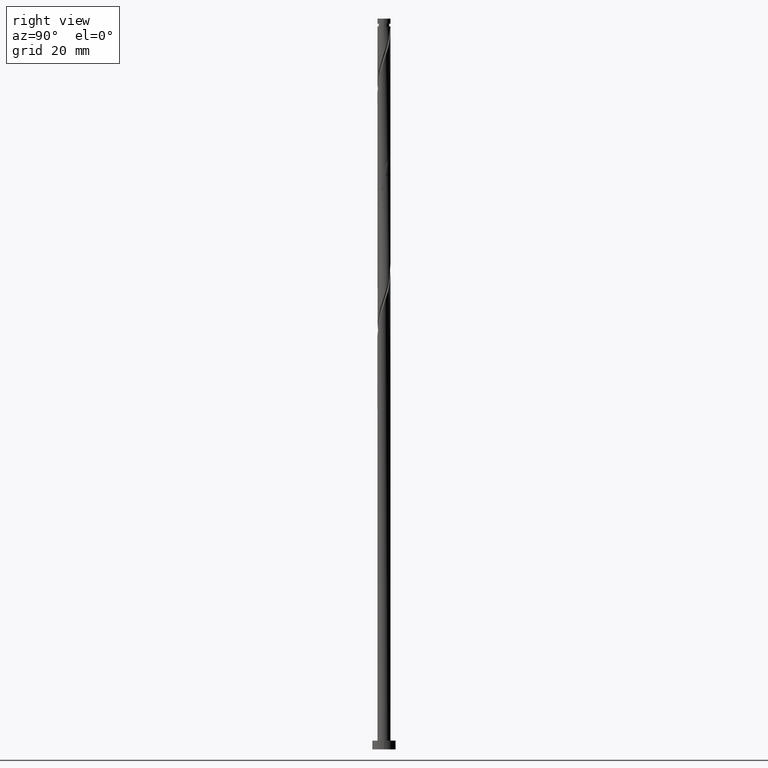
[diagram: clean part render]
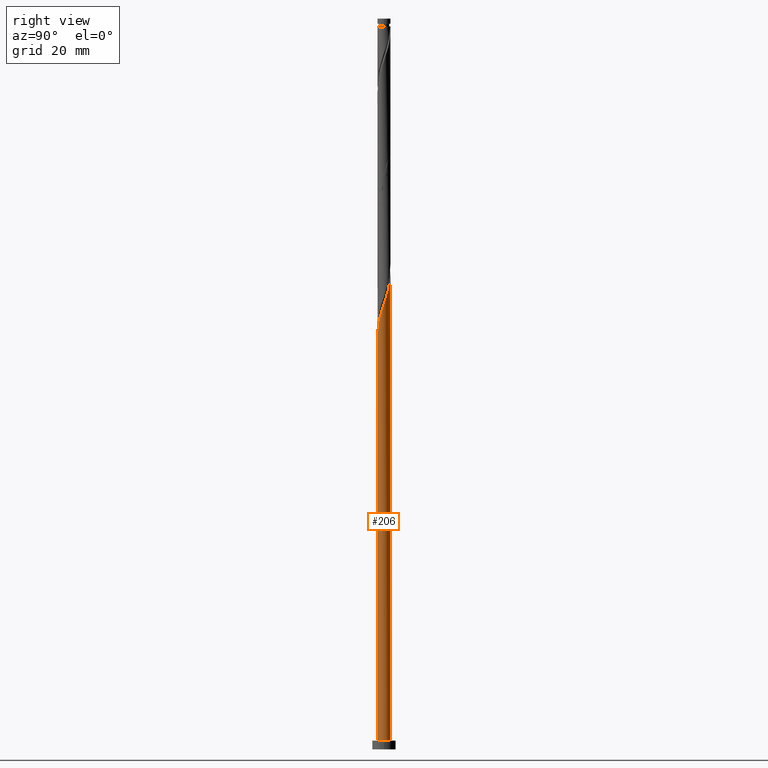
[diagram: same view with one face highlighted and labeled with its STEP entity id]
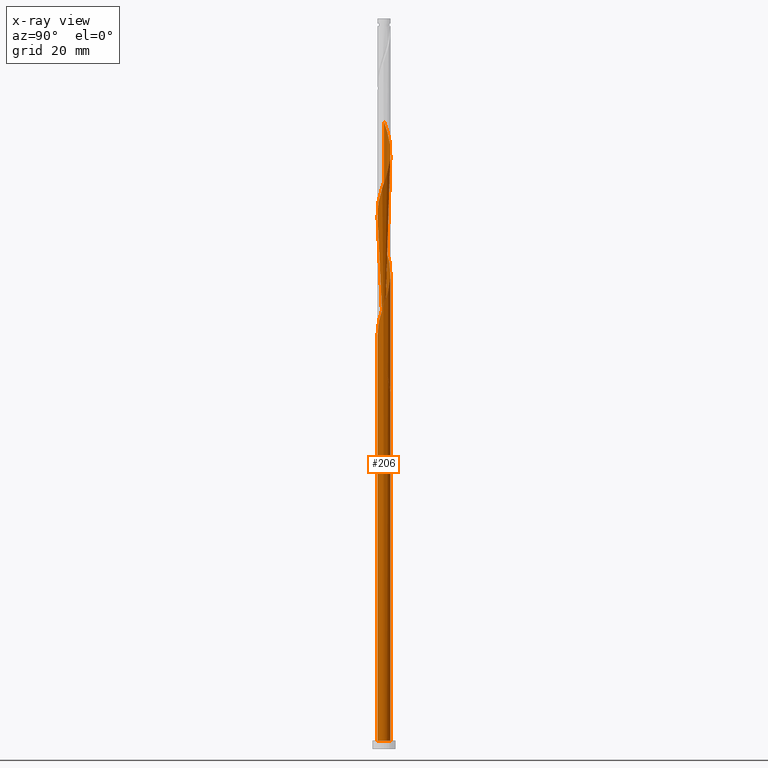
[diagram: x-ray of the same camera — body ghosted, the highlighted face saturated]
A machine part, right view. The second image highlights one B-rep face of the part: STEP entity #206.
The next image is the same camera in x-ray: the body ghosted, the highlighted face saturated — about 0% of this face is hidden behind the body in this view.
In plain terms, the highlighted cylindrical surface (bore or boss wall) has radius 2.25 mm, axis along (-0, -0, -1).
Its self-contained STEP definition (entity closure, byte-faithful):
#3 = ORIENTED_EDGE ( 'NONE', *, *, #802, .T. ) ;
#9 = CARTESIAN_POINT ( 'NONE',  ( -2.250000000000000000, 0.000000000000000000, 250.0000000000000000 ) ) ;
#15 = AXIS2_PLACEMENT_3D ( 'NONE', #147, #1450, #280 ) ;
#18 = EDGE_CURVE ( 'NONE', #1128, #1163, #1183, .T. ) ;
#19 = LINE ( 'NONE', #1718, #1282 ) ;
#32 = CARTESIAN_POINT ( 'NONE',  ( -1.363498215478761599, -1.810527702787224635, 137.5899613470693907 ) ) ;
#33 = CARTESIAN_POINT ( 'NONE',  ( 0.4477443466979811881, 2.204999999999998739, 122.3656023727104127 ) ) ;
#35 = CARTESIAN_POINT ( 'NONE',  ( -1.421172524092397582, 1.744353363503178933, 125.5707305778386313 ) ) ;
#41 = CARTESIAN_POINT ( 'NONE',  ( 2.220483148606112955, -0.3632555391956107105, 151.2117562188641955 ) ) ;
#45 = DIRECTION ( 'NONE',  ( 1.000000000000000000, 0.000000000000000000, 0.000000000000000000 ) ) ;
#49 = CARTESIAN_POINT ( 'NONE',  ( 2.176375940620510541, -0.6328710068109749676, 192.0771408342488655 ) ) ;
#56 = CARTESIAN_POINT ( 'NONE',  ( -2.250000000000002665, -2.071397486860161381E-15, 131.4543471634852381 ) ) ;
#61 = CARTESIAN_POINT ( 'NONE',  ( -2.250000000000002220, 2.991187706657272286E-17, 214.7876804968185809 ) ) ;
#64 = CARTESIAN_POINT ( 'NONE',  ( -1.902938481636570200, -1.200552012661973755, 135.1861151932232019 ) ) ;
#68 = CARTESIAN_POINT ( 'NONE',  ( 0.3659235337506719921, 2.236791879818319284, 203.2950895521976236 ) ) ;
#104 = ORIENTED_EDGE ( 'NONE', *, *, #1544, .T. ) ;
#108 = CARTESIAN_POINT ( 'NONE',  ( -2.250000000000000000, 0.08948954325773064711, 133.8460199996359563 ) ) ;
#112 = CARTESIAN_POINT ( 'NONE',  ( -1.127044005484668876, -1.947375621111932187, 180.0579100650180919 ) ) ;
#116 = CARTESIAN_POINT ( 'NONE',  ( -1.560331645388216781, 1.621069139919732116, 128.7758587829668215 ) ) ;
#129 = CARTESIAN_POINT ( 'NONE',  ( -1.797326917357241483, 1.353556778322626997, 168.8399613470694192 ) ) ;
#140 = CARTESIAN_POINT ( 'NONE',  ( -1.961678465785108516, 1.135321779518358332, 169.6412433983514632 ) ) ;
#147 = CARTESIAN_POINT ( 'NONE',  ( 0.000000000000000000, 0.000000000000000000, 122.3656023727104412 ) ) ;
#167 = CARTESIAN_POINT ( 'NONE',  ( 1.961678465785108072, -1.135321779518358998, 190.4745767316848060 ) ) ;
#173 = CARTESIAN_POINT ( 'NONE',  ( 2.264590356591716258, -0.09364007158024623134, 193.6797049368130104 ) ) ;
#177 = CARTESIAN_POINT ( 'NONE',  ( -0.8905897954905761527, -2.084223539436641737, 139.1925254496335072 ) ) ;
#181 = CARTESIAN_POINT ( 'NONE',  ( 1.421172524092397582, -1.744353363503178933, 188.0707305778386171 ) ) ;
#190 = CARTESIAN_POINT ( 'NONE',  ( 1.797326917357241038, -1.353556778322626997, 189.6732946804027335 ) ) ;
#199 = CARTESIAN_POINT ( 'NONE',  ( -1.209369679255421159, 1.916914949879464425, 208.1027818598899444 ) ) ;
#205 = CARTESIAN_POINT ( 'NONE',  ( -1.757165075297676626, -1.431610577052243816, 135.9873972445053028 ) ) ;
#206 = ADVANCED_FACE ( 'NONE', ( #1244 ), #930, .T. ) ;
#213 = ORIENTED_EDGE ( 'NONE', *, *, #1488, .T. ) ;
#219 = CARTESIAN_POINT ( 'NONE',  ( -1.363498215478759157, 1.810527702787223081, 127.9745767316848202 ) ) ;
#228 = CARTESIAN_POINT ( 'NONE',  ( -1.127044005484666434, 1.947375621111930855, 127.1732946804027335 ) ) ;
#232 = CARTESIAN_POINT ( 'NONE',  ( 1.757165075297677737, 1.431610577052242705, 156.8207305778386740 ) ) ;
#240 = VERTEX_POINT ( 'NONE', #1349 ) ;
#259 = CARTESIAN_POINT ( 'NONE',  ( -0.6282566646206237948, -2.160507709627479844, 181.6604741675821799 ) ) ;
#264 = CARTESIAN_POINT ( 'NONE',  ( 0.1800088736928962818, 2.259366006552623318, 123.1668844239924852 ) ) ;
#269 = CARTESIAN_POINT ( 'NONE',  ( -0.7154798197030658446, 2.150633993447378156, 164.8335510906591423 ) ) ;
#280 = DIRECTION ( 'NONE',  ( 0.000000000000000000, 1.000000000000000000, -1.850371707708594129E-14 ) ) ;
#304 = CARTESIAN_POINT ( 'NONE',  ( -0.1800088736928949495, 2.259366006552626871, 204.8976536547617684 ) ) ;
#313 = CARTESIAN_POINT ( 'NONE',  ( 0.9624247494792426139, -2.033774471663421402, 186.4681664752744723 ) ) ;
#315 = VECTOR ( 'NONE', #546, 1000.000000000000000 ) ;
#319 = CARTESIAN_POINT ( 'NONE',  ( -0.6282566646206237948, -2.160507709627479844, 139.9938075009155796 ) ) ;
#321 = CARTESIAN_POINT ( 'NONE',  ( -0.9624247494792432800, 2.033774471663420957, 207.3014998086078151 ) ) ;
#322 = CARTESIAN_POINT ( 'NONE',  ( -2.250000000000003109, 0.1828269867083482936, 214.2479797594702973 ) ) ;
#329 = CARTESIAN_POINT ( 'NONE',  ( 2.048711887975464219, 0.9694934482717034729, 196.8848331419411579 ) ) ;
#336 = CARTESIAN_POINT ( 'NONE',  ( 1.632975368929374449, -1.571791777126895218, 147.2053459624540039 ) ) ;
#341 = CARTESIAN_POINT ( 'NONE',  ( 1.421172524092397582, -1.744353363503178933, 146.4040639111719315 ) ) ;
#343 = CARTESIAN_POINT ( 'NONE',  ( 0.4477443466979806885, -2.205000000000001847, 184.8656023727103843 ) ) ;
#361 = CARTESIAN_POINT ( 'NONE',  ( -1.902938481636567536, 1.200552012661972867, 130.3784228855309379 ) ) ;
#382 = CARTESIAN_POINT ( 'NONE',  ( -1.902938481636570200, -1.200552012661973755, 176.8527818598898591 ) ) ;
#393 = CARTESIAN_POINT ( 'NONE',  ( -0.9624247494792432800, 2.033774471663420957, 165.6348331419411579 ) ) ;
#395 = EDGE_LOOP ( 'NONE', ( #1327, #1399, #213, #3, #1664, #1453, #576, #104, #1222 ) ) ;
#399 = CARTESIAN_POINT ( 'NONE',  ( -0.09295733002888698082, 2.248078943185470191, 123.9681664752745149 ) ) ;
#430 = AXIS2_PLACEMENT_3D ( 'NONE', #1111, #722, #1234 ) ;
#439 = VERTEX_POINT ( 'NONE', #602 ) ;
#442 = CARTESIAN_POINT ( 'NONE',  ( 0.9624247494792426139, -2.033774471663421402, 144.8014998086078720 ) ) ;
#445 = CARTESIAN_POINT ( 'NONE',  ( 2.134953450232148331, 0.7102631662573074545, 196.0835510906590571 ) ) ;
#449 = CARTESIAN_POINT ( 'NONE',  ( -1.560331645388218780, -1.621069139919733226, 136.7886792957873183 ) ) ;
#461 = CARTESIAN_POINT ( 'NONE',  ( 1.757165075297677737, 1.431610577052242705, 198.4873972445053028 ) ) ;
#472 = CARTESIAN_POINT ( 'NONE',  ( -2.221195012488832887, -0.4510328842429138230, 132.7822690393770984 ) ) ;
#484 = CARTESIAN_POINT ( 'NONE',  ( -1.757165075297674628, 1.431610577052242483, 129.5771408342488655 ) ) ;
#509 = CARTESIAN_POINT ( 'NONE',  ( -2.250000000000000000, 2.864062229124354370E-15, 134.1101909152689302 ) ) ;
#519 = CARTESIAN_POINT ( 'NONE',  ( -2.242892684540271464, 0.1786964063313342399, 133.5835510906591139 ) ) ;
#525 = CARTESIAN_POINT ( 'NONE',  ( -2.134953450232147887, -0.7102631662573087867, 175.2502177573257995 ) ) ;
#532 = CARTESIAN_POINT ( 'NONE',  ( -0.3659235337506718255, -2.236791879818319284, 182.4617562188642808 ) ) ;
#540 = CARTESIAN_POINT ( 'NONE',  ( -1.209369679255421159, 1.916914949879464425, 166.4361151932232588 ) ) ;
#546 = DIRECTION ( 'NONE',  ( -0.000000000000000000, -0.000000000000000000, -1.000000000000000000 ) ) ;
#571 = CARTESIAN_POINT ( 'NONE',  ( -1.632975368929374449, 1.571791777126894996, 126.3720126291207038 ) ) ;
#573 = CARTESIAN_POINT ( 'NONE',  ( -2.176375940620510541, 0.6328710068109739684, 212.9104741675822368 ) ) ;
#576 = ORIENTED_EDGE ( 'NONE', *, *, #1471, .F. ) ;
#589 = CARTESIAN_POINT ( 'NONE',  ( -1.632975368929374449, 1.571791777126894996, 209.7053459624540324 ) ) ;
#602 = CARTESIAN_POINT ( 'NONE',  ( -2.250000000000002665, -2.071397486860161381E-15, 131.4543471634852381 ) ) ;
#605 = CARTESIAN_POINT ( 'NONE',  ( 2.264590356591716258, -0.09364007158024623134, 152.0130382701463816 ) ) ;
#612 = CARTESIAN_POINT ( 'NONE',  ( 0.09295733002888947882, 2.248078943185472411, 162.4297049368129535 ) ) ;
#620 = VERTEX_POINT ( 'NONE', #1118 ) ;
#631 = CARTESIAN_POINT ( 'NONE',  ( -0.4477443466979804110, 2.205000000000001847, 164.0322690393770415 ) ) ;
#635 = CARTESIAN_POINT ( 'NONE',  ( -2.221195012488829779, 0.4510328842429138785, 132.7822690393770984 ) ) ;
#644 = CARTESIAN_POINT ( 'NONE',  ( -0.8905897954905749314, 2.084223539436639072, 126.3720126291207038 ) ) ;
#669 = CARTESIAN_POINT ( 'NONE',  ( -2.221195012488832887, -0.4510328842429138230, 174.4489357060437271 ) ) ;
#682 = EDGE_CURVE ( 'NONE', #1163, #996, #924, .T. ) ;
#687 = CARTESIAN_POINT ( 'NONE',  ( 1.797326917357241038, -1.353556778322626997, 148.0066280137359911 ) ) ;
#689 =( BOUNDED_CURVE ( )  B_SPLINE_CURVE ( 2, ( #56, #1649, #1378, #472, #849, #1096, #64, #205, #449, #32, #1624, #177, #319, #829, #1497, #712, #1384, #983, #442, #975, #341, #336, #687, #1204, #695, #1647, #41, #605, #1518, #980, #1546, #1014, #856, #232, #1391, #1419, #1257, #1276, #1266, #1686, #612, #1667, #631, #269, #393, #540, #1313, #1302, #129, #140, #1056, #792, #918, #1702, #1553, #669, #525, #767, #382, #892, #882, #1430, #112, #1165, #259, #532, #1037, #1650, #343, #1008, #313, #1373, #181, #833, #190, #167, #969, #49, #1079, #173, #1215, #1502, #445, #329, #815, #461, #1089, #823, #1483, #842, #1361, #68, #1629, #304, #1490, #697, #321, #199, #707, #589, #1238, #1068, #1217, #573, #1070, #322, #61 ),
 .UNSPECIFIED., .F., .T. ) 
 B_SPLINE_CURVE_WITH_KNOTS ( ( 3, 2, 2, 2, 2, 2, 2, 2, 2, 2, 2, 2, 2, 2, 2, 2, 2, 2, 2, 2, 2, 2, 2, 2, 2, 2, 2, 2, 2, 2, 2, 2, 2, 2, 2, 2, 2, 2, 2, 2, 2, 2, 2, 2, 2, 2, 2, 2, 2, 2, 2, 2, 2, 3 ),
 ( 0.05452716259738319554, 0.05769230769230770939, 0.06730769230769229061, 0.07692307692307687184, 0.08653846153846156408, 0.09615384615384614531, 0.1057692307692307265, 0.1153846153846154188, 0.1250000000000000000, 0.1346153846153845812, 0.1442307692307692735, 0.1538461538461538547, 0.1634615384615384359, 0.1730769230769231282, 0.1826923076923077094, 0.1923076923076922906, 0.2019230769230768718, 0.2115384615384615641, 0.2211538461538461453, 0.2307692307692307265, 0.2403846153846154188, 0.2500000000000000000, 0.2596153846153845812, 0.2692307692307692735, 0.2788461538461538547, 0.2884615384615384359, 0.2980769230769231282, 0.3076923076923077094, 0.3173076923076922906, 0.3269230769230768718, 0.3365384615384615641, 0.3461538461538461453, 0.3557692307692307265, 0.3653846153846154188, 0.3750000000000000000, 0.3846153846153845812, 0.3942307692307692735, 0.4038461538461538547, 0.4134615384615384359, 0.4230769230769231282, 0.4326923076923077094, 0.4423076923076922906, 0.4519230769230768718, 0.4615384615384615641, 0.4711538461538461453, 0.4807692307692307265, 0.4903846153846154188, 0.5000000000000000000, 0.5096153846153845812, 0.5192307692307691624, 0.5288461538461538547, 0.5384615384615384359, 0.5480769230769231282, 0.5545271625973834384 ),
 .UNSPECIFIED. ) 
 CURVE ( )  GEOMETRIC_REPRESENTATION_ITEM ( )  RATIONAL_B_SPLINE_CURVE ( ( 0.9061636035683027224, 0.9069090390690913717, 0.9090909090909480295, 0.9024626128164512373, 0.9090909090909480295, 0.9024626128164512373, 0.9090909090909480295, 0.9024626128164512373, 0.9090909090909480295, 0.9024626128164512373, 0.9090909090909480295, 0.9024626128164512373, 0.9090909090909480295, 0.9024626128164512373, 0.9090909090909480295, 0.9024626128164512373, 0.9090909090909480295, 0.9024626128164512373, 0.9090909090909480295, 0.9024626128164512373, 0.9090909090909480295, 0.9024626128164512373, 0.9090909090909480295, 0.9024626128164512373, 0.9090909090909480295, 0.9024626128164512373, 0.9090909090909480295, 0.9024626128164512373, 0.9090909090909480295, 0.9024626128164512373, 0.9090909090909480295, 0.9024626128164512373, 0.9090909090909480295, 0.9024626128164512373, 0.9090909090909480295, 0.9024626128164512373, 0.9090909090909480295, 0.9024626128164512373, 0.9090909090909480295, 0.9024626128164512373, 0.9090909090909480295, 0.9024626128164512373, 0.9090909090909480295, 0.9024626128164512373, 0.9090909090909480295, 0.9024626128164512373, 0.9090909090909480295, 0.9024626128164512373, 0.9090909090909480295, 0.9024626128164512373, 0.9090909090909480295, 0.9024626128164512373, 0.9090909090909480295, 0.9024626128164512373, 0.9090909090909480295, 0.9024626128164512373, 0.9090909090909480295, 0.9024626128164512373, 0.9090909090909480295, 0.9024626128164512373, 0.9090909090909480295, 0.9024626128164512373, 0.9090909090909480295, 0.9024626128164512373, 0.9090909090909480295, 0.9024626128164512373, 0.9090909090909480295, 0.9024626128164512373, 0.9090909090909480295, 0.9024626128164512373, 0.9090909090909480295, 0.9024626128164512373, 0.9090909090909480295, 0.9024626128164512373, 0.9090909090909480295, 0.9024626128164512373, 0.9090909090909480295, 0.9024626128164512373, 0.9090909090909480295, 0.9024626128164512373, 0.9090909090909480295, 0.9024626128164512373, 0.9090909090909480295, 0.9024626128164512373, 0.9090909090909480295, 0.9024626128164512373, 0.9090909090909480295, 0.9024626128164512373, 0.9090909090909480295, 0.9024626128164512373, 0.9090909090909480295, 0.9024626128164512373, 0.9090909090909480295, 0.9024626128164512373, 0.9090909090909480295, 0.9024626128164512373, 0.9090909090909480295, 0.9024626128164512373, 0.9090909090909480295, 0.9024626128164512373, 0.9090909090909480295, 0.9024626128164512373, 0.9090909090909480295, 0.9024626128164512373, 0.9090909090909480295, 0.9046444828383077841, 0.9061636035683027224 ) ) 
 REPRESENTATION_ITEM ( '' )  );
#695 = CARTESIAN_POINT ( 'NONE',  ( 2.069027203202809417, -0.8840963931646660390, 149.6091921163001359 ) ) ;
#696 = CARTESIAN_POINT ( 'NONE',  ( -1.961678465785108516, 1.135321779518358332, 127.9745767316848202 ) ) ;
#697 = CARTESIAN_POINT ( 'NONE',  ( -0.7154798197030658446, 2.150633993447378156, 206.5002177573258280 ) ) ;
#707 = CARTESIAN_POINT ( 'NONE',  ( -1.421172524092397582, 1.744353363503178933, 208.9040639111719031 ) ) ;
#712 = CARTESIAN_POINT ( 'NONE',  ( 0.1800088736928952271, -2.259366006552626871, 142.3976536547617116 ) ) ;
#722 = DIRECTION ( 'NONE',  ( -0.000000000000000000, -0.000000000000000000, -1.000000000000000000 ) ) ;
#767 = CARTESIAN_POINT ( 'NONE',  ( -2.048711887975463330, -0.9694934482717042501, 176.0514998086078151 ) ) ;
#792 = CARTESIAN_POINT ( 'NONE',  ( -2.176375940620510541, 0.6328710068109739684, 171.2438075009156080 ) ) ;
#802 = EDGE_CURVE ( 'NONE', #1317, #620, #810, .T. ) ;
#810 = CIRCLE ( 'NONE', #1707, 2.250000000000000000 ) ;
#815 = CARTESIAN_POINT ( 'NONE',  ( 1.902938481636570200, 1.200552012661973755, 197.6861151932232019 ) ) ;
#816 = CARTESIAN_POINT ( 'NONE',  ( -2.250000000000000000, 0.000000000000000000, 3.000000000000000000 ) ) ;
#823 = CARTESIAN_POINT ( 'NONE',  ( 1.363498215478762265, 1.810527702787223969, 200.0899613470694476 ) ) ;
#829 = CARTESIAN_POINT ( 'NONE',  ( -0.3659235337506718255, -2.236791879818319284, 140.7950895521976236 ) ) ;
#833 = CARTESIAN_POINT ( 'NONE',  ( 1.632975368929374449, -1.571791777126895218, 188.8720126291206896 ) ) ;
#838 = CIRCLE ( 'NONE', #15, 2.250000000000000000 ) ;
#839 = DIRECTION ( 'NONE',  ( -0.000000000000000000, -0.000000000000000000, -1.000000000000000000 ) ) ;
#842 = CARTESIAN_POINT ( 'NONE',  ( 0.8905897954905765967, 2.084223539436641737, 201.6925254496335356 ) ) ;
#849 = CARTESIAN_POINT ( 'NONE',  ( -2.134953450232147887, -0.7102631662573087867, 133.5835510906591139 ) ) ;
#856 = CARTESIAN_POINT ( 'NONE',  ( 1.902938481636570200, 1.200552012661973755, 156.0194485265566016 ) ) ;
#882 = CARTESIAN_POINT ( 'NONE',  ( -1.560331645388218780, -1.621069139919733226, 178.4553459624540039 ) ) ;
#892 = CARTESIAN_POINT ( 'NONE',  ( -1.757165075297676626, -1.431610577052243816, 177.6540639111719315 ) ) ;
#914 = CARTESIAN_POINT ( 'NONE',  ( -2.250000000000002220, 2.991187706657272286E-17, 214.7876804968185809 ) ) ;
#918 = CARTESIAN_POINT ( 'NONE',  ( -2.220483148606112955, 0.3632555391956103774, 172.0450895521975099 ) ) ;
#924 =( BOUNDED_CURVE ( )  B_SPLINE_CURVE ( 2, ( #509, #108, #519, #635, #1661, #1018, #361, #484, #116, #219, #228, #644, #1027, #1559, #399, #264, #1635 ),
 .UNSPECIFIED., .F., .T. ) 
 B_SPLINE_CURVE_WITH_KNOTS ( ( 3, 2, 2, 2, 2, 2, 2, 2, 3 ),
 ( 0.9295271625973833274, 0.9326923076923077094, 0.9423076923076922906, 0.9519230769230768718, 0.9615384615384615641, 0.9711538461538461453, 0.9807692307692307265, 0.9903846153846154188, 1.000000000000000000 ),
 .UNSPECIFIED. ) 
 CURVE ( )  GEOMETRIC_REPRESENTATION_ITEM ( )  RATIONAL_B_SPLINE_CURVE ( ( 0.9061636035682977264, 0.9069090390690863757, 0.9090909090909430335, 0.9024626128164462413, 0.9090909090909430335, 0.9024626128164462413, 0.9090909090909430335, 0.9024626128164462413, 0.9090909090909430335, 0.9024626128164462413, 0.9090909090909430335, 0.9024626128164462413, 0.9090909090909430335, 0.9024626128164462413, 0.9090909090909430335, 0.9024626128164462413, 0.9090909090909430335 ) ) 
 REPRESENTATION_ITEM ( '' )  );
#930 = CYLINDRICAL_SURFACE ( 'NONE', #430, 2.250000000000000000 ) ;
#951 = CARTESIAN_POINT ( 'NONE',  ( -0.7154798197030658446, 2.150633993447378156, 123.1668844239924994 ) ) ;
#969 = CARTESIAN_POINT ( 'NONE',  ( 2.069027203202809417, -0.8840963931646660390, 191.2758587829667931 ) ) ;
#971 = CARTESIAN_POINT ( 'NONE',  ( 0.000000000000000000, 0.000000000000000000, 3.000000000000000000 ) ) ;
#975 = CARTESIAN_POINT ( 'NONE',  ( 1.209369679255420715, -1.916914949879464425, 145.6027818598899159 ) ) ;
#976 = CIRCLE ( 'NONE', #1225, 2.250000000000000000 ) ;
#980 = CARTESIAN_POINT ( 'NONE',  ( 2.221195012488832887, 0.4510328842429134899, 153.6156023727104696 ) ) ;
#983 = CARTESIAN_POINT ( 'NONE',  ( 0.7154798197030652895, -2.150633993447378156, 144.0002177573257995 ) ) ;
#996 = VERTEX_POINT ( 'NONE', #33 ) ;
#1008 = CARTESIAN_POINT ( 'NONE',  ( 0.7154798197030652895, -2.150633993447378156, 185.6668844239924567 ) ) ;
#1014 = CARTESIAN_POINT ( 'NONE',  ( 2.048711887975464219, 0.9694934482717034729, 155.2181664752745576 ) ) ;
#1018 = CARTESIAN_POINT ( 'NONE',  ( -2.048711887975461110, 0.9694934482717035840, 131.1797049368130104 ) ) ;
#1027 = CARTESIAN_POINT ( 'NONE',  ( -0.6282566646206224625, 2.160507709627478068, 125.5707305778386313 ) ) ;
#1037 = CARTESIAN_POINT ( 'NONE',  ( -0.09295733002888825758, -2.248078943185472411, 183.2630382701462679 ) ) ;
#1056 = CARTESIAN_POINT ( 'NONE',  ( -2.069027203202809417, 0.8840963931646660390, 170.4425254496334787 ) ) ;
#1068 = CARTESIAN_POINT ( 'NONE',  ( -1.961678465785108516, 1.135321779518358332, 211.3079100650181203 ) ) ;
#1070 = CARTESIAN_POINT ( 'NONE',  ( -2.220483148606112955, 0.3632555391956103774, 213.7117562188642523 ) ) ;
#1074 = CARTESIAN_POINT ( 'NONE',  ( 0.000000000000000000, 0.000000000000000000, 3.000000000000000000 ) ) ;
#1076 = CARTESIAN_POINT ( 'NONE',  ( -2.069027203202809417, 0.8840963931646660390, 128.7758587829668215 ) ) ;
#1079 = CARTESIAN_POINT ( 'NONE',  ( 2.220483148606112955, -0.3632555391956107105, 192.8784228855309095 ) ) ;
#1087 = CARTESIAN_POINT ( 'NONE',  ( -2.176375940620510541, 0.6328710068109739684, 129.5771408342488940 ) ) ;
#1089 = CARTESIAN_POINT ( 'NONE',  ( 1.560331645388219224, 1.621069139919733004, 199.2886792957873467 ) ) ;
#1096 = CARTESIAN_POINT ( 'NONE',  ( -2.048711887975463330, -0.9694934482717042501, 134.3848331419411863 ) ) ;
#1111 = CARTESIAN_POINT ( 'NONE',  ( 0.000000000000000000, 0.000000000000000000, 250.0000000000000000 ) ) ;
#1118 = CARTESIAN_POINT ( 'NONE',  ( 2.250000000000000000, 0.000000000000000000, 3.000000000000000000 ) ) ;
#1128 = VERTEX_POINT ( 'NONE', #914 ) ;
#1163 = VERTEX_POINT ( 'NONE', #1329 ) ;
#1165 = CARTESIAN_POINT ( 'NONE',  ( -0.8905897954905761527, -2.084223539436641737, 180.8591921163000791 ) ) ;
#1173 = CARTESIAN_POINT ( 'NONE',  ( -2.250000000000002220, 0.1828269867083550659, 130.9146464261368692 ) ) ;
#1183 = LINE ( 'NONE', #9, #315 ) ;
#1204 = CARTESIAN_POINT ( 'NONE',  ( 1.961678465785108072, -1.135321779518358998, 148.8079100650180919 ) ) ;
#1215 = CARTESIAN_POINT ( 'NONE',  ( 2.242892684540274573, 0.1786964063313326301, 194.4809869880950544 ) ) ;
#1217 = CARTESIAN_POINT ( 'NONE',  ( -2.069027203202809417, 0.8840963931646660390, 212.1091921163001075 ) ) ;
#1222 = ORIENTED_EDGE ( 'NONE', *, *, #682, .F. ) ;
#1225 = AXIS2_PLACEMENT_3D ( 'NONE', #971, #1343, #1618 ) ;
#1234 = DIRECTION ( 'NONE',  ( -1.000000000000000000, 0.000000000000000000, 0.000000000000000000 ) ) ;
#1235 = DIRECTION ( 'NONE',  ( 0.000000000000000000, 0.000000000000000000, 1.000000000000000000 ) ) ;
#1238 = CARTESIAN_POINT ( 'NONE',  ( -1.797326917357241483, 1.353556778322626997, 210.5066280137361048 ) ) ;
#1244 = FACE_OUTER_BOUND ( 'NONE', #395, .T. ) ;
#1257 = CARTESIAN_POINT ( 'NONE',  ( 1.127044005484668876, 1.947375621111931743, 159.2245767316847491 ) ) ;
#1266 = CARTESIAN_POINT ( 'NONE',  ( 0.6282566646206247940, 2.160507709627479844, 160.8271408342488655 ) ) ;
#1276 = CARTESIAN_POINT ( 'NONE',  ( 0.8905897954905765967, 2.084223539436641737, 160.0258587829668215 ) ) ;
#1282 = VECTOR ( 'NONE', #839, 1000.000000000000000 ) ;
#1302 = CARTESIAN_POINT ( 'NONE',  ( -1.632975368929374449, 1.571791777126894996, 168.0386792957874320 ) ) ;
#1313 = CARTESIAN_POINT ( 'NONE',  ( -1.421172524092397582, 1.744353363503178933, 167.2373972445052459 ) ) ;
#1315 = EDGE_CURVE ( 'NONE', #439, #1128, #689, .T. ) ;
#1317 = VERTEX_POINT ( 'NONE', #816 ) ;
#1327 = ORIENTED_EDGE ( 'NONE', *, *, #18, .F. ) ;
#1329 = CARTESIAN_POINT ( 'NONE',  ( -2.250000000000000000, 2.864062229124354370E-15, 134.1101909152689302 ) ) ;
#1342 = CARTESIAN_POINT ( 'NONE',  ( -0.9624247494792432800, 2.033774471663420957, 123.9681664752745007 ) ) ;
#1343 = DIRECTION ( 'NONE',  ( 0.000000000000000000, 0.000000000000000000, 1.000000000000000000 ) ) ;
#1349 = CARTESIAN_POINT ( 'NONE',  ( -0.4477443466979804110, 2.205000000000002292, 122.3656023727104127 ) ) ;
#1359 = CARTESIAN_POINT ( 'NONE',  ( -2.250000000000002665, -2.071397486860161381E-15, 131.4543471634852381 ) ) ;
#1361 = CARTESIAN_POINT ( 'NONE',  ( 0.6282566646206247940, 2.160507709627479844, 202.4938075009155227 ) ) ;
#1364 = EDGE_CURVE ( 'NONE', #620, #1317, #976, .T. ) ;
#1373 = CARTESIAN_POINT ( 'NONE',  ( 1.209369679255420715, -1.916914949879464425, 187.2694485265565731 ) ) ;
#1378 = CARTESIAN_POINT ( 'NONE',  ( -2.242892684540274129, -0.1786964063313334905, 131.9809869880950259 ) ) ;
#1384 = CARTESIAN_POINT ( 'NONE',  ( 0.4477443466979806885, -2.205000000000001847, 143.1989357060437271 ) ) ;
#1391 = CARTESIAN_POINT ( 'NONE',  ( 1.560331645388219224, 1.621069139919733004, 157.6220126291206896 ) ) ;
#1394 =( BOUNDED_CURVE ( )  B_SPLINE_CURVE ( 2, ( #1504, #951, #1342, #1476, #35, #571, #1482, #696, #1076, #1087, #1499, #1173, #1359 ),
 .UNSPECIFIED., .F., .T. ) 
 B_SPLINE_CURVE_WITH_KNOTS ( ( 3, 2, 2, 2, 2, 2, 3 ),
 ( 0.000000000000000000, 0.009615384615384581224, 0.01923076923076927347, 0.02884615384615385469, 0.03846153846153843592, 0.04807692307692312816, 0.05452716259738319554 ),
 .UNSPECIFIED. ) 
 CURVE ( )  GEOMETRIC_REPRESENTATION_ITEM ( )  RATIONAL_B_SPLINE_CURVE ( ( 0.9090909090909480295, 0.9024626128164512373, 0.9090909090909480295, 0.9024626128164512373, 0.9090909090909480295, 0.9024626128164512373, 0.9090909090909480295, 0.9024626128164512373, 0.9090909090909480295, 0.9024626128164512373, 0.9090909090909480295, 0.9046444828383080061, 0.9061636035683027224 ) ) 
 REPRESENTATION_ITEM ( '' )  );
#1399 = ORIENTED_EDGE ( 'NONE', *, *, #1315, .F. ) ;
#1419 = CARTESIAN_POINT ( 'NONE',  ( 1.363498215478762265, 1.810527702787223969, 158.4232946804027904 ) ) ;
#1430 = CARTESIAN_POINT ( 'NONE',  ( -1.363498215478761599, -1.810527702787224635, 179.2566280137360479 ) ) ;
#1450 = DIRECTION ( 'NONE',  ( -1.027162637006525975E-29, -1.541976423090496107E-14, -1.000000000000000000 ) ) ;
#1453 = ORIENTED_EDGE ( 'NONE', *, *, #1488, .F. ) ;
#1471 = EDGE_CURVE ( 'NONE', #240, #439, #1394, .T. ) ;
#1476 = CARTESIAN_POINT ( 'NONE',  ( -1.209369679255421159, 1.916914949879464425, 124.7694485265565874 ) ) ;
#1482 = CARTESIAN_POINT ( 'NONE',  ( -1.797326917357241483, 1.353556778322626997, 127.1732946804027051 ) ) ;
#1483 = CARTESIAN_POINT ( 'NONE',  ( 1.127044005484668876, 1.947375621111931743, 200.8912433983513779 ) ) ;
#1488 = EDGE_CURVE ( 'NONE', #439, #1317, #19, .T. ) ;
#1490 = CARTESIAN_POINT ( 'NONE',  ( -0.4477443466979804110, 2.205000000000001847, 205.6989357060436987 ) ) ;
#1497 = CARTESIAN_POINT ( 'NONE',  ( -0.09295733002888825758, -2.248078943185472411, 141.5963716034796960 ) ) ;
#1499 = CARTESIAN_POINT ( 'NONE',  ( -2.220483148606112955, 0.3632555391956103774, 130.3784228855308811 ) ) ;
#1502 = CARTESIAN_POINT ( 'NONE',  ( 2.221195012488832887, 0.4510328842429134899, 195.2822690393770415 ) ) ;
#1504 = CARTESIAN_POINT ( 'NONE',  ( -0.4477443466979804110, 2.205000000000002292, 122.3656023727104127 ) ) ;
#1518 = CARTESIAN_POINT ( 'NONE',  ( 2.242892684540274573, 0.1786964063313326301, 152.8143203214283687 ) ) ;
#1544 = EDGE_CURVE ( 'NONE', #240, #996, #838, .T. ) ;
#1546 = CARTESIAN_POINT ( 'NONE',  ( 2.134953450232148331, 0.7102631662573074545, 154.4168844239924567 ) ) ;
#1553 = CARTESIAN_POINT ( 'NONE',  ( -2.242892684540274129, -0.1786964063313334905, 173.6476536547617400 ) ) ;
#1559 = CARTESIAN_POINT ( 'NONE',  ( -0.3659235337506702712, 2.236791879818317508, 124.7694485265565874 ) ) ;
#1618 = DIRECTION ( 'NONE',  ( 1.000000000000000000, 0.000000000000000000, 0.000000000000000000 ) ) ;
#1624 = CARTESIAN_POINT ( 'NONE',  ( -1.127044005484668876, -1.947375621111932187, 138.3912433983513779 ) ) ;
#1629 = CARTESIAN_POINT ( 'NONE',  ( 0.09295733002888947882, 2.248078943185472411, 204.0963716034796391 ) ) ;
#1635 = CARTESIAN_POINT ( 'NONE',  ( 0.4477443466979811881, 2.204999999999998739, 122.3656023727104127 ) ) ;
#1647 = CARTESIAN_POINT ( 'NONE',  ( 2.176375940620510541, -0.6328710068109749676, 150.4104741675821799 ) ) ;
#1649 = CARTESIAN_POINT ( 'NONE',  ( -2.250000000000003109, -0.08948954325772623397, 131.7185180791181551 ) ) ;
#1650 = CARTESIAN_POINT ( 'NONE',  ( 0.1800088736928952271, -2.259366006552626871, 184.0643203214283687 ) ) ;
#1661 = CARTESIAN_POINT ( 'NONE',  ( -2.134953450232145222, 0.7102631662573090088, 131.9809869880950259 ) ) ;
#1664 = ORIENTED_EDGE ( 'NONE', *, *, #1364, .T. ) ;
#1667 = CARTESIAN_POINT ( 'NONE',  ( -0.1800088736928949495, 2.259366006552626871, 163.2309869880950544 ) ) ;
#1686 = CARTESIAN_POINT ( 'NONE',  ( 0.3659235337506719921, 2.236791879818319284, 161.6284228855309664 ) ) ;
#1702 = CARTESIAN_POINT ( 'NONE',  ( -2.264590356591716258, 0.09364007158024642563, 172.8463716034796391 ) ) ;
#1707 = AXIS2_PLACEMENT_3D ( 'NONE', #1074, #1235, #45 ) ;
#1718 = CARTESIAN_POINT ( 'NONE',  ( -2.250000000000000000, 0.000000000000000000, 250.0000000000000000 ) ) ;